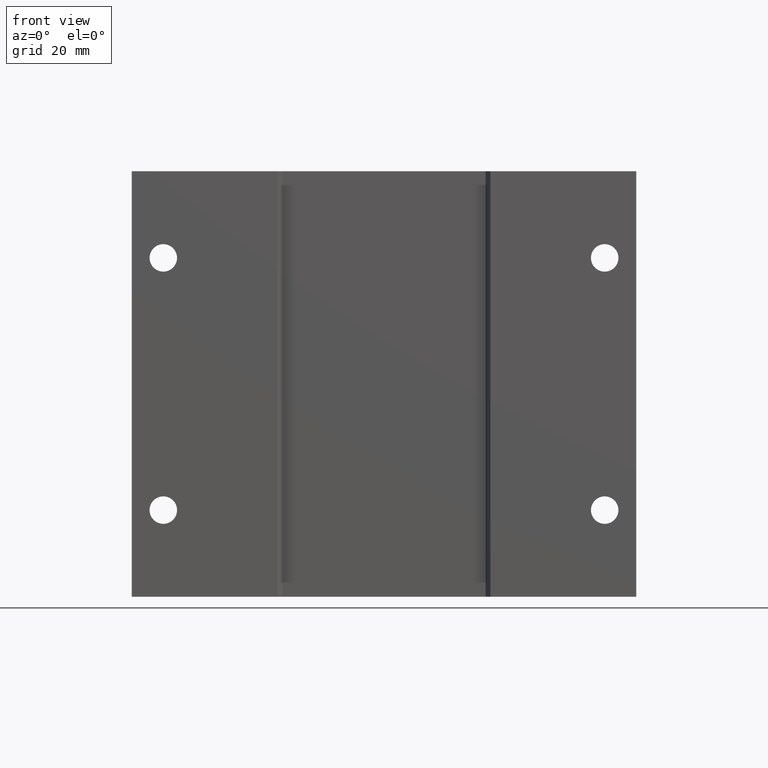
[diagram: clean part render]
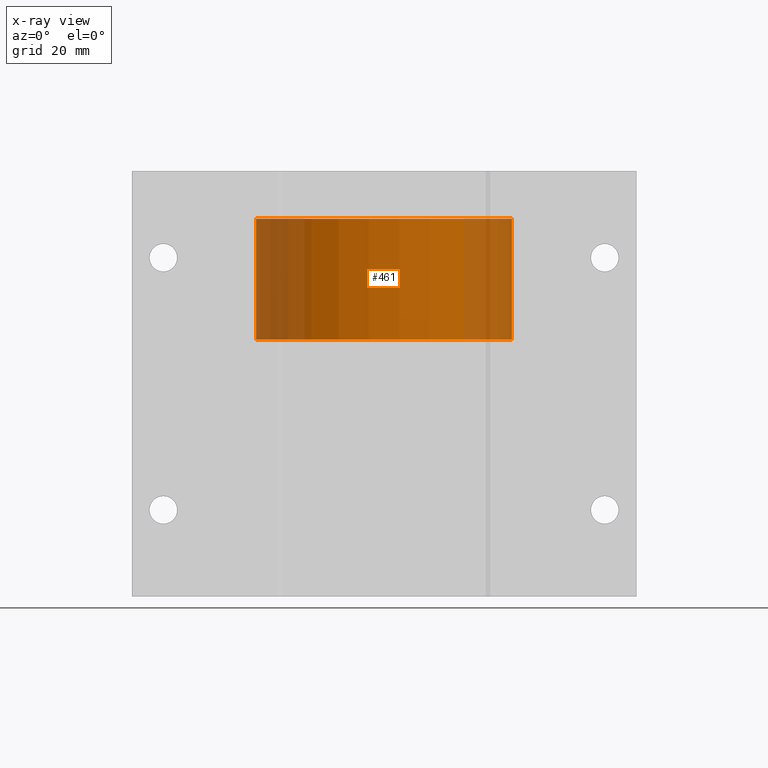
[diagram: x-ray — body ghosted, one internal face saturated and labeled with its STEP entity id]
A machine part, front view, then the same camera in x-ray: the body is ghosted and one INTERNAL B-rep face — a face not visible from any outside direction — is saturated and labeled: STEP entity #461.
In plain terms, the highlighted cylindrical surface (partial cylindrical patch) has radius 25.7556 mm, axis along (0, 0, 1).
Its self-contained STEP definition (entity closure, byte-faithful):
#260 = EDGE_CURVE ( 'NONE', #536, #6631, #1696, .T. ) ;
#287 = ORIENTED_EDGE ( 'NONE', *, *, #7198, .T. ) ;
#461 = ADVANCED_FACE ( 'NONE', ( #3553 ), #5811, .F. ) ;
#536 = VERTEX_POINT ( 'NONE', #1402 ) ;
#678 = CARTESIAN_POINT ( 'NONE',  ( 1.014000000000000012, 0.000000000000000000, 1.309247924617903180 ) ) ;
#735 = CARTESIAN_POINT ( 'NONE',  ( 0.000000000000000000, 0.000000000000000000, -1.687501968503936967 ) ) ;
#927 = DIRECTION ( 'NONE',  ( 1.000000000000000000, 0.000000000000000000, 0.000000000000000000 ) ) ;
#1015 = CARTESIAN_POINT ( 'NONE',  ( -1.014000000000000012, 1.241791854335416114E-16, -1.687501968503936967 ) ) ;
#1076 = LINE ( 'NONE', #3412, #3481 ) ;
#1274 = VERTEX_POINT ( 'NONE', #3126 ) ;
#1402 = CARTESIAN_POINT ( 'NONE',  ( -1.014000000000000012, 1.241791854335416114E-16, 1.309247924617903180 ) ) ;
#1446 = DIRECTION ( 'NONE',  ( -0.000000000000000000, -0.000000000000000000, 1.000000000000000000 ) ) ;
#1696 = CIRCLE ( 'NONE', #5821, 1.014000000000000012 ) ;
#2078 = AXIS2_PLACEMENT_3D ( 'NONE', #735, #6400, #4366 ) ;
#2119 = EDGE_CURVE ( 'NONE', #1274, #6631, #1076, .T. ) ;
#2249 = DIRECTION ( 'NONE',  ( -0.000000000000000000, -0.000000000000000000, 1.000000000000000000 ) ) ;
#2322 = VECTOR ( 'NONE', #5097, 39.37007874015748143 ) ;
#2676 = CARTESIAN_POINT ( 'NONE',  ( 0.000000000000000000, 0.000000000000000000, 0.3498924834860024924 ) ) ;
#2836 = LINE ( 'NONE', #1015, #2322 ) ;
#2868 = CARTESIAN_POINT ( 'NONE',  ( 0.000000000000000000, 0.000000000000000000, 1.309247924617903180 ) ) ;
#3049 = ORIENTED_EDGE ( 'NONE', *, *, #4518, .F. ) ;
#3126 = CARTESIAN_POINT ( 'NONE',  ( 1.013999999999999568, 0.000000000000000000, 0.3498924834860024924 ) ) ;
#3412 = CARTESIAN_POINT ( 'NONE',  ( 1.014000000000000012, 0.000000000000000000, -1.687501968503936967 ) ) ;
#3481 = VECTOR ( 'NONE', #3962, 39.37007874015748143 ) ;
#3553 = FACE_OUTER_BOUND ( 'NONE', #4941, .T. ) ;
#3961 = ORIENTED_EDGE ( 'NONE', *, *, #260, .T. ) ;
#3962 = DIRECTION ( 'NONE',  ( -0.000000000000000000, -0.000000000000000000, 1.000000000000000000 ) ) ;
#4027 = AXIS2_PLACEMENT_3D ( 'NONE', #2676, #1446, #927 ) ;
#4280 = ORIENTED_EDGE ( 'NONE', *, *, #2119, .F. ) ;
#4366 = DIRECTION ( 'NONE',  ( 1.000000000000000000, 0.000000000000000000, 0.000000000000000000 ) ) ;
#4518 = EDGE_CURVE ( 'NONE', #6356, #1274, #6271, .T. ) ;
#4941 = EDGE_LOOP ( 'NONE', ( #3049, #287, #3961, #4280 ) ) ;
#5097 = DIRECTION ( 'NONE',  ( -0.000000000000000000, -0.000000000000000000, 1.000000000000000000 ) ) ;
#5811 = CYLINDRICAL_SURFACE ( 'NONE', #2078, 1.014000000000000012 ) ;
#5821 = AXIS2_PLACEMENT_3D ( 'NONE', #2868, #2249, #6865 ) ;
#5989 = CARTESIAN_POINT ( 'NONE',  ( -1.013999999999999568, 1.241791854335415868E-16, 0.3498924834860024924 ) ) ;
#6271 = CIRCLE ( 'NONE', #4027, 1.013999999999999568 ) ;
#6356 = VERTEX_POINT ( 'NONE', #5989 ) ;
#6400 = DIRECTION ( 'NONE',  ( -0.000000000000000000, -0.000000000000000000, 1.000000000000000000 ) ) ;
#6631 = VERTEX_POINT ( 'NONE', #678 ) ;
#6865 = DIRECTION ( 'NONE',  ( 1.000000000000000000, 0.000000000000000000, 0.000000000000000000 ) ) ;
#7198 = EDGE_CURVE ( 'NONE', #6356, #536, #2836, .T. ) ;